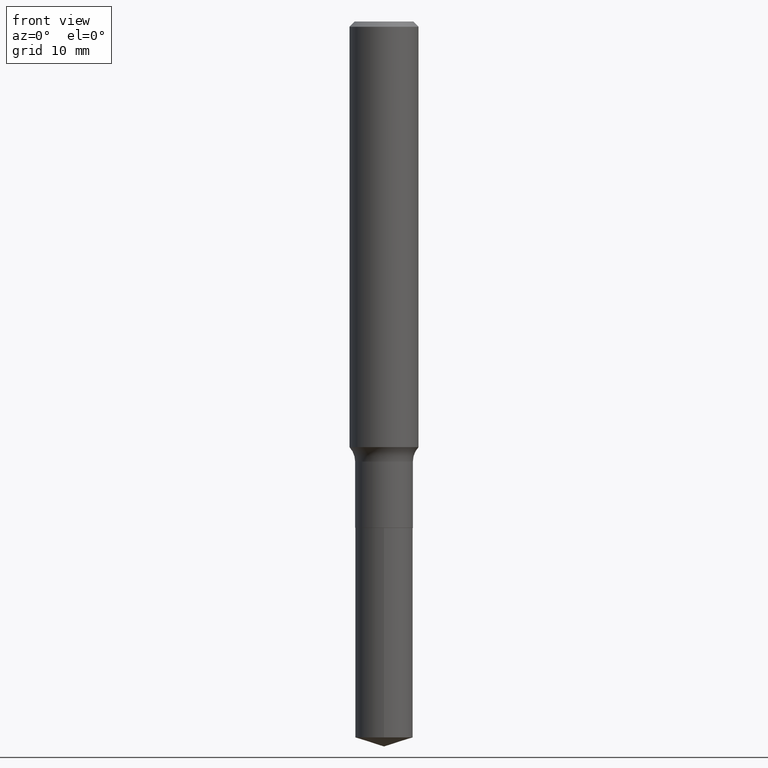
[diagram: clean part render]
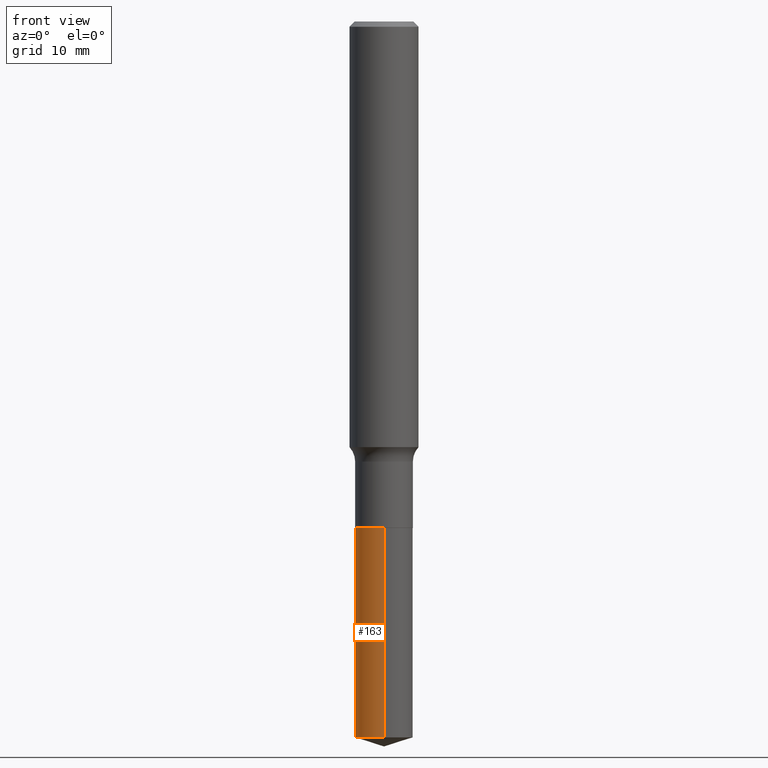
[diagram: same view with one face highlighted and labeled with its STEP entity id]
A machine part, front view. The second image highlights one B-rep face of the part: STEP entity #163.
In plain terms, the highlighted cylindrical surface (edge-blend (fillet) strip) has radius 2.6543 mm, axis along (-0, 0, 1).
Its self-contained STEP definition (entity closure, byte-faithful):
#4 = CARTESIAN_POINT ( 'NONE',  ( -7.297195998181512181E-16, -0.1045000000000090162, -2.592051276562145734 ) ) ;
#8 = EDGE_CURVE ( 'NONE', #18, #58, #70, .T. ) ;
#11 = CARTESIAN_POINT ( 'NONE',  ( 7.425171588693677723E-16, 0.1044999999999909057, -2.592051276562146622 ) ) ;
#18 = VERTEX_POINT ( 'NONE', #4 ) ;
#19 = DIRECTION ( 'NONE',  ( -2.445444567542754060E-29, 3.491516049958615080E-15, 1.000000000000000000 ) ) ;
#21 = DIRECTION ( 'NONE',  ( -6.982962677686266711E-15, -1.000000000000000000, 5.228417212754571700E-15 ) ) ;
#30 = VERTEX_POINT ( 'NONE', #11 ) ;
#41 = CARTESIAN_POINT ( 'NONE',  ( -7.297195998181698549E-16, -0.1045000000000063933, -1.833999999999999853 ) ) ;
#47 = FACE_OUTER_BOUND ( 'NONE', #114, .T. ) ;
#50 = EDGE_CURVE ( 'NONE', #159, #58, #286, .T. ) ;
#58 = VERTEX_POINT ( 'NONE', #41 ) ;
#62 = AXIS2_PLACEMENT_3D ( 'NONE', #222, #19, #21 ) ;
#70 = LINE ( 'NONE', #337, #149 ) ;
#80 = DIRECTION ( 'NONE',  ( -2.445444567542754060E-29, 3.491516049958615080E-15, 1.000000000000000000 ) ) ;
#88 = CARTESIAN_POINT ( 'NONE',  ( 4.484989790543541016E-29, -6.403376775438329103E-15, -1.834000000000000075 ) ) ;
#92 = ORIENTED_EDGE ( 'NONE', *, *, #190, .T. ) ;
#114 = EDGE_LOOP ( 'NONE', ( #250, #92, #458, #216 ) ) ;
#115 = VECTOR ( 'NONE', #348, 39.37007874015748143 ) ;
#149 = VECTOR ( 'NONE', #227, 39.37007874015748143 ) ;
#159 = VERTEX_POINT ( 'NONE', #274 ) ;
#163 = ADVANCED_FACE ( 'NONE', ( #47 ), #203, .T. ) ;
#190 = EDGE_CURVE ( 'NONE', #30, #18, #275, .T. ) ;
#196 = LINE ( 'NONE', #204, #115 ) ;
#203 = CYLINDRICAL_SURFACE ( 'NONE', #305, 0.1044999999999999818 ) ;
#204 = CARTESIAN_POINT ( 'NONE',  ( 7.425171588693493327E-16, 0.1044999999999935841, -1.834000000000000519 ) ) ;
#205 = DIRECTION ( 'NONE',  ( -2.445444567542754060E-29, 3.491516049958615080E-15, 1.000000000000000000 ) ) ;
#216 = ORIENTED_EDGE ( 'NONE', *, *, #50, .F. ) ;
#218 = AXIS2_PLACEMENT_3D ( 'NONE', #88, #80, #431 ) ;
#222 = CARTESIAN_POINT ( 'NONE',  ( 6.338762166731291806E-29, -9.050124974246680744E-15, -2.592051276562146178 ) ) ;
#227 = DIRECTION ( 'NONE',  ( -2.445444567542754060E-29, 3.491516049958615475E-15, 1.000000000000000000 ) ) ;
#250 = ORIENTED_EDGE ( 'NONE', *, *, #415, .F. ) ;
#274 = CARTESIAN_POINT ( 'NONE',  ( 7.425171588693679696E-16, 0.1044999999999935703, -1.834000000000000519 ) ) ;
#275 = CIRCLE ( 'NONE', #62, 0.1044999999999999818 ) ;
#286 = CIRCLE ( 'NONE', #218, 0.1044999999999999818 ) ;
#305 = AXIS2_PLACEMENT_3D ( 'NONE', #459, #205, #315 ) ;
#315 = DIRECTION ( 'NONE',  ( -6.982962677686266711E-15, -1.000000000000000000, 2.614208606377285850E-15 ) ) ;
#337 = CARTESIAN_POINT ( 'NONE',  ( -7.297195998181698549E-16, -0.1045000000000063933, -1.833999999999999853 ) ) ;
#348 = DIRECTION ( 'NONE',  ( -2.445444567542754060E-29, 3.491516049958615475E-15, 1.000000000000000000 ) ) ;
#415 = EDGE_CURVE ( 'NONE', #30, #159, #196, .T. ) ;
#431 = DIRECTION ( 'NONE',  ( -6.982962677686266711E-15, -1.000000000000000000, 2.614208606377285850E-15 ) ) ;
#458 = ORIENTED_EDGE ( 'NONE', *, *, #8, .T. ) ;
#459 = CARTESIAN_POINT ( 'NONE',  ( 4.484989790543541016E-29, -6.403376775438329103E-15, -1.834000000000000075 ) ) ;